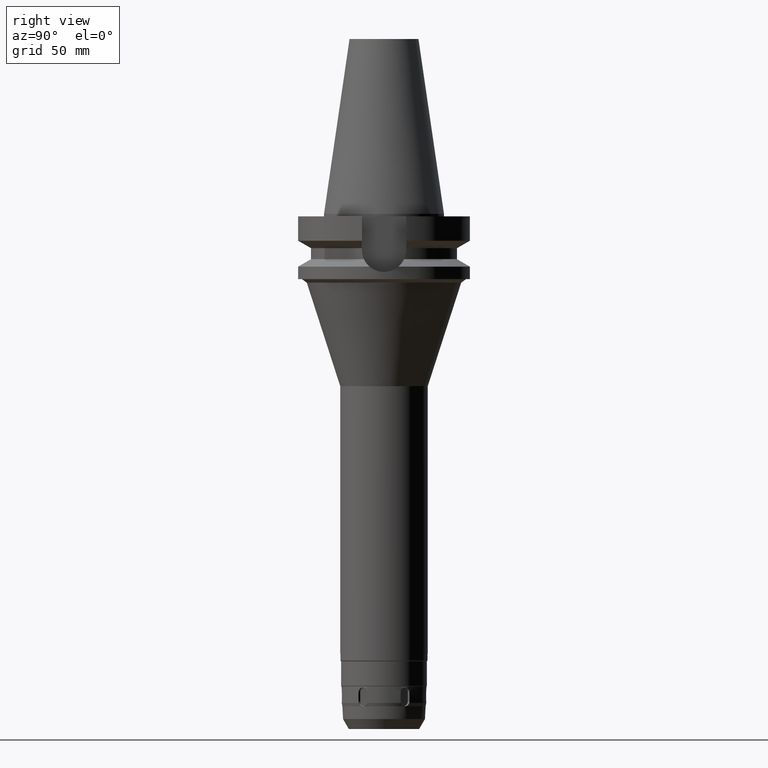
[diagram: clean part render]
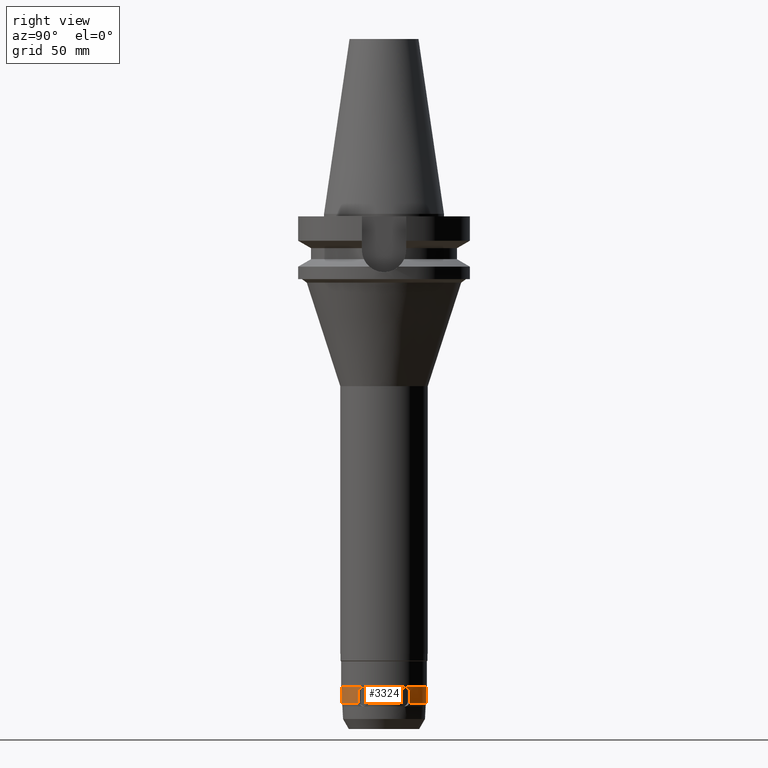
[diagram: same view with one face highlighted and labeled with its STEP entity id]
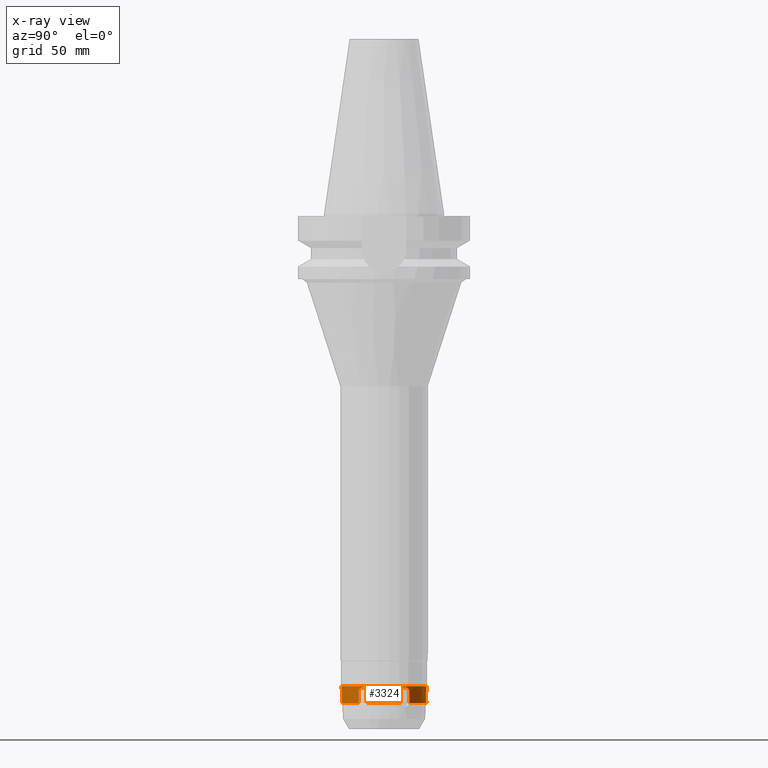
[diagram: x-ray of the same camera — body ghosted, the highlighted face saturated]
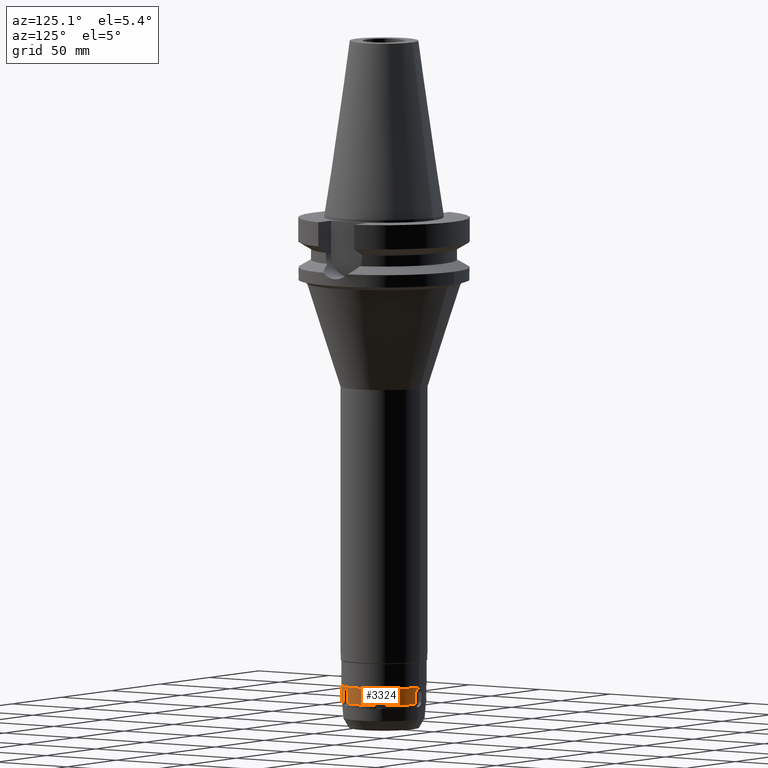
[diagram: same view with one face highlighted and labeled with its STEP entity id]
A machine part, right view. The second image highlights one B-rep face of the part: STEP entity #3324.
The next image is the same camera in x-ray: the body ghosted, the highlighted face saturated — about 0% of this face is hidden behind the body in this view.
A second angle (auxiliary view) of the same face is appended — the face is thin or edge-on in the first view.
In plain terms, the highlighted cylindrical surface (partial cylindrical patch) has radius 24.75 mm, axis along (0, 0, -1).
Its self-contained STEP definition (entity closure, byte-faithful):
#467=CARTESIAN_POINT('',(0.E0,2.475E1,-2.758E2));
#472=DIRECTION('',(0.E0,2.732856676001E-14,-1.E0));
#473=VECTOR('',#472,6.499999999998E-1);
#474=CARTESIAN_POINT('',(0.E0,-2.475E1,-2.7515E2));
#475=LINE('',#474,#473);
#915=DIRECTION('',(-4.985799191714E-7,-1.752553323637E-7,9.999999999999E-1));
#916=VECTOR('',#915,5.000000000457E0);
#917=CARTESIAN_POINT('',(3.000002492900E0,-2.456750815496E1,-2.838000000005E2));
#918=LINE('',#917,#916);
#922=CARTESIAN_POINT('',(3.E0,-2.456750903124E1,-2.788E2));
#923=CARTESIAN_POINT('',(3.E0,-2.456750903124E1,-2.784773189620E2));
#924=CARTESIAN_POINT('',(2.901737406105E0,-2.457983105459E1,-2.778657216087E2));
#925=CARTESIAN_POINT('',(2.468117400806E0,-2.462868960676E1,-2.770076618780E2));
#926=CARTESIAN_POINT('',(1.796126327076E0,-2.468888519152E1,-2.763345541125E2));
#927=CARTESIAN_POINT('',(9.374418590112E-1,-2.473768067492E1,
-2.758990372206E2));
#928=CARTESIAN_POINT('',(3.238370295E-1,-2.475E1,-2.758E2));
#929=CARTESIAN_POINT('',(0.E0,-2.475E1,-2.758E2));
#934=DIRECTION('',(0.E0,2.732856676001E-14,-1.E0));
#935=VECTOR('',#934,6.499999999998E-1);
#936=CARTESIAN_POINT('',(0.E0,2.475E1,-2.7515E2));
#937=LINE('',#936,#935);
#941=CARTESIAN_POINT('',(0.E0,2.475E1,-2.758E2));
#942=CARTESIAN_POINT('',(3.225943565431E-1,2.475E1,-2.758E2));
#943=CARTESIAN_POINT('',(9.343732660262E-1,2.473777639778E1,-2.758982749011E2));
#944=CARTESIAN_POINT('',(1.792350117317E0,2.468916330610E1,-2.763319074940E2));
#945=CARTESIAN_POINT('',(2.465473525384E0,2.462896830111E1,-2.770038877262E2));
#946=CARTESIAN_POINT('',(2.900979531439E0,2.457992707366E1,-2.778626657037E2));
#947=CARTESIAN_POINT('',(3.E0,2.456750903124E1,-2.784760815761E2));
#948=CARTESIAN_POINT('',(3.E0,2.456750903124E1,-2.788E2));
#953=DIRECTION('',(2.576889739610E-7,-7.023126662184E-6,-9.999999999753E-1));
#954=VECTOR('',#953,5.000000012459E0);
#955=CARTESIAN_POINT('',(3.E0,2.456750903124E1,-2.788E2));
#956=LINE('',#955,#954);
#960=CARTESIAN_POINT('',(3.000001288445E0,2.456747391561E1,-2.838000000123E2));
#961=CARTESIAN_POINT('',(3.000001288445E0,2.456747391561E1,-2.839258400291E2));
#962=CARTESIAN_POINT('',(2.984316333592E0,2.456944845330E1,-2.841751526566E2));
#963=CARTESIAN_POINT('',(2.913995611813E0,2.457791047101E1,-2.845455275823E2));
#964=CARTESIAN_POINT('',(2.837149755738E0,2.458689214251E1,-2.847830320613E2));
#965=CARTESIAN_POINT('',(2.791052263792E0,2.459212389518E1,-2.848999973441E2));
#970=CARTESIAN_POINT('',(1.990187100291E1,1.471325292055E1,-2.848998445620E2));
#971=CARTESIAN_POINT('',(1.987430333504E1,1.475054250773E1,-2.847828735393E2));
#972=CARTESIAN_POINT('',(1.982810225289E1,1.481252235116E1,-2.845456004221E2));
#973=CARTESIAN_POINT('',(1.978559961788E1,1.486921101090E1,-2.841751306958E2));
#974=CARTESIAN_POINT('',(1.977608492607E1,1.488183244549E1,-2.839258396634E2));
#975=CARTESIAN_POINT('',(1.977608492607E1,1.488183244549E1,-2.838000000005E2));
#980=DIRECTION('',(4.005382741557E-7,-3.437027707462E-7,9.999999999999E-1));
#981=VECTOR('',#980,5.000000000456E0);
#982=CARTESIAN_POINT('',(1.977608492607E1,1.488183244549E1,-2.838000000005E2));
#983=LINE('',#982,#981);
#987=CARTESIAN_POINT('',(1.977608692876E1,1.488183072697E1,-2.788E2));
#988=CARTESIAN_POINT('',(1.977608692876E1,1.488183072697E1,-2.784773752667E2));
#989=CARTESIAN_POINT('',(1.983586684451E1,1.480292365529E1,-2.778658471675E2));
#990=CARTESIAN_POINT('',(2.009498005915E1,1.445184226122E1,-2.770077150291E2));
#991=CARTESIAN_POINT('',(2.048316652153E1,1.389989513474E1,-2.763345007345E2));
#992=CARTESIAN_POINT('',(2.095481770310E1,1.318056375420E1,-2.758989928907E2));
#993=CARTESIAN_POINT('',(2.127224328425E1,1.265539396954E1,-2.757999993626E2));
#994=CARTESIAN_POINT('',(2.143412879945E1,1.237500003221E1,-2.757999993626E2));
#999=CARTESIAN_POINT('',(2.143412879945E1,1.237500003221E1,-2.757999993626E2));
#1000=CARTESIAN_POINT('',(2.159538681796E1,1.209569295101E1,-2.757999993626E2));
#1001=CARTESIAN_POINT('',(2.189064921239E1,1.155985231454E1,-2.758982062018E2));
#1002=CARTESIAN_POINT('',(2.227765758541E1,1.079228290176E1,-2.763319451164E2));
#1003=CARTESIAN_POINT('',(2.256207875571E1,1.017925374528E1,-2.770039869237E2));
#1004=CARTESIAN_POINT('',(2.273734784923E1,9.777602339054E0,-2.778628080706E2));
#1005=CARTESIAN_POINT('',(2.277608692876E1,9.685678304267E0,-2.784761421239E2));
#1006=CARTESIAN_POINT('',(2.277608692876E1,9.685678304267E0,-2.788E2));
#1011=DIRECTION('',(-5.953448492678E-6,-3.734266386889E-6,-9.999999999753E-1));
#1012=VECTOR('',#1011,5.000000012458E0);
#1013=CARTESIAN_POINT('',(2.277608692876E1,9.685678304267E0,-2.788E2));
#1014=LINE('',#1013,#1012);
#1018=CARTESIAN_POINT('',(2.277605716152E1,9.685659632935E0,-2.838000000123E2));
#1019=CARTESIAN_POINT('',(2.277605716152E1,9.685659632935E0,-2.839258400292E2));
#1020=CARTESIAN_POINT('',(2.276992468094E1,9.700230475901E0,-2.841751526574E2));
#1021=CARTESIAN_POINT('',(2.274209265096E1,9.765360997966E0,-2.845455275850E2));
#1022=CARTESIAN_POINT('',(2.271144807453E1,9.836402304117E0,-2.847830320671E2));
#1023=CARTESIAN_POINT('',(2.269293015968E1,9.878939778698E0,-2.848999973466E2));
#1028=CARTESIAN_POINT('',(2.269298630309E1,-9.878899410784E0,
-2.848998445612E2));
#1029=CARTESIAN_POINT('',(2.271149619891E1,-9.836380316590E0,
-2.847828735384E2));
#1030=CARTESIAN_POINT('',(2.274207177663E1,-9.765379084357E0,
-2.845456004225E2));
#1031=CARTESIAN_POINT('',(2.276991427863E1,-9.700226392716E0,
-2.841751306957E2));
#1032=CARTESIAN_POINT('',(2.277608741569E1,-9.685675710629E0,
-2.839258396634E2));
#1033=CARTESIAN_POINT('',(2.277608741569E1,-9.685675710629E0,
-2.838000000005E2));
#1038=DIRECTION('',(-9.738618017784E-8,-5.187276321787E-7,9.999999999999E-1));
#1039=VECTOR('',#1038,5.000000000456E0);
#1040=CARTESIAN_POINT('',(2.277608741569E1,-9.685675710629E0,
-2.838000000005E2));
#1041=LINE('',#1040,#1039);
#1045=CARTESIAN_POINT('',(2.277608692876E1,-9.685678304267E0,-2.788E2));
#1046=CARTESIAN_POINT('',(2.277608692876E1,-9.685678304267E0,
-2.784773492231E2));
#1047=CARTESIAN_POINT('',(2.273763579786E1,-9.776916607144E0,
-2.778657934553E2));
#1048=CARTESIAN_POINT('',(2.256314203351E1,-1.017686301117E1,
-2.770077103197E2));
#1049=CARTESIAN_POINT('',(2.227929621174E1,-1.078889085747E1,
-2.763345817537E2));
#1050=CARTESIAN_POINT('',(2.189209564939E1,-1.155715623215E1,
-2.758989654914E2));
#1051=CARTESIAN_POINT('',(2.159600657219E1,-1.209461950521E1,
-2.757999993626E2));
#1052=CARTESIAN_POINT('',(2.143412879945E1,-1.237500003221E1,
-2.757999993626E2));
#1057=CARTESIAN_POINT('',(2.143412879945E1,-1.237500003221E1,
-2.757999993626E2));
#1058=CARTESIAN_POINT('',(2.127286984388E1,-1.265430873643E1,
-2.757999993626E2));
#1059=CARTESIAN_POINT('',(2.095644792771E1,-1.317793309358E1,
-2.758982247524E2));
#1060=CARTESIAN_POINT('',(2.048531096178E1,-1.389674128364E1,
-2.763318333027E2));
#1061=CARTESIAN_POINT('',(2.009654832199E1,-1.444968524736E1,
-2.770039273537E2));
#1062=CARTESIAN_POINT('',(1.983633087374E1,-1.480231272656E1,
-2.778627792158E2));
#1063=CARTESIAN_POINT('',(1.977608692876E1,-1.488183072697E1,
-2.784761333597E2));
#1064=CARTESIAN_POINT('',(1.977608692876E1,-1.488183072697E1,-2.788E2));
#1069=DIRECTION('',(-6.210693610754E-6,3.288704327863E-6,-9.999999999753E-1));
#1070=VECTOR('',#1069,5.000000012459E0);
#1071=CARTESIAN_POINT('',(1.977608692876E1,-1.488183072697E1,-2.788E2));
#1072=LINE('',#1071,#1070);
#1076=CARTESIAN_POINT('',(1.977605587529E1,-1.488181428345E1,
-2.838000000123E2));
#1077=CARTESIAN_POINT('',(1.977605587529E1,-1.488181428345E1,
-2.839258400292E2));
#1078=CARTESIAN_POINT('',(1.978560835517E1,-1.486921797800E1,
-2.841751526574E2));
#1079=CARTESIAN_POINT('',(1.982809702682E1,-1.481254947200E1,
-2.845455275849E2));
#1080=CARTESIAN_POINT('',(1.987429831451E1,-1.475048983717E1,
-2.847830320673E2));
#1081=CARTESIAN_POINT('',(1.990187789070E1,-1.471318411516E1,
-2.848999973469E2));
#1086=CARTESIAN_POINT('',(2.791115295476E0,-2.459215233289E1,
-2.848998445561E2));
#1087=CARTESIAN_POINT('',(2.837192859875E0,-2.458692282574E1,
-2.847828735296E2));
#1088=CARTESIAN_POINT('',(2.913969511288E0,-2.457790143645E1,
-2.845456004210E2));
#1089=CARTESIAN_POINT('',(2.984314674456E0,-2.456943740244E1,
-2.841751306947E2));
#1090=CARTESIAN_POINT('',(3.000002492900E0,-2.456750815496E1,
-2.839258396634E2));
#1091=CARTESIAN_POINT('',(3.000002492900E0,-2.456750815496E1,
-2.838000000005E2));
#1149=CARTESIAN_POINT('',(0.E0,-2.143438060208E-14,-2.7515E2));
#1150=DIRECTION('',(0.E0,0.E0,-1.E0));
#1151=DIRECTION('',(0.E0,1.E0,0.E0));
#1152=AXIS2_PLACEMENT_3D('',#1149,#1150,#1151);
#2070=CARTESIAN_POINT('',(1.990187100291E1,1.471325292055E1,-2.848998445620E2));
#2075=CARTESIAN_POINT('',(0.E0,-2.275804337279E-14,-2.849E2));
#2076=DIRECTION('',(0.E0,0.E0,1.E0));
#2077=DIRECTION('',(8.041163631674E-1,5.944719290988E-1,0.E0));
#2078=AXIS2_PLACEMENT_3D('',#2075,#2076,#2077);
#2112=CARTESIAN_POINT('',(2.269298630309E1,-9.878899410784E0,
-2.848998445612E2));
#2117=CARTESIAN_POINT('',(0.E0,-2.275804337279E-14,-2.849E2));
#2118=DIRECTION('',(0.E0,0.E0,1.E0));
#2119=DIRECTION('',(9.168859740200E-1,-3.991492335524E-1,0.E0));
#2120=AXIS2_PLACEMENT_3D('',#2117,#2118,#2119);
#2154=CARTESIAN_POINT('',(2.791115295476E0,-2.459215233289E1,
-2.848998445561E2));
#2159=CARTESIAN_POINT('',(0.E0,-2.275804337279E-14,-2.849E2));
#2160=DIRECTION('',(0.E0,0.E0,1.E0));
#2161=DIRECTION('',(1.127696100176E-1,-9.936211627459E-1,0.E0));
#2162=AXIS2_PLACEMENT_3D('',#2159,#2160,#2161);
#2370=VERTEX_POINT('',#2070);
#2371=CARTESIAN_POINT('',(2.791039356372E0,2.459212474169E1,-2.849E2));
#2372=VERTEX_POINT('',#2371);
#2375=VERTEX_POINT('',#2112);
#2376=CARTESIAN_POINT('',(2.269292444505E1,9.878951367977E0,-2.849E2));
#2377=VERTEX_POINT('',#2376);
#2380=VERTEX_POINT('',#2154);
#2381=CARTESIAN_POINT('',(1.990188506994E1,-1.471317337159E1,-2.849E2));
#2382=VERTEX_POINT('',#2381);
#2391=VERTEX_POINT('',#1018);
#2398=CARTESIAN_POINT('',(1.977608492607E1,1.488183244549E1,-2.838000000005E2));
#2399=VERTEX_POINT('',#2398);
#2408=CARTESIAN_POINT('',(3.000002492900E0,-2.456750815496E1,
-2.838000000005E2));
#2409=VERTEX_POINT('',#2408);
#2417=VERTEX_POINT('',#467);
#2418=CARTESIAN_POINT('',(0.E0,2.475E1,-2.7515E2));
#2419=VERTEX_POINT('',#2418);
#2420=CARTESIAN_POINT('',(0.E0,-2.475E1,-2.7515E2));
#2421=VERTEX_POINT('',#2420);
#2422=CARTESIAN_POINT('',(0.E0,-2.475E1,-2.758E2));
#2423=VERTEX_POINT('',#2422);
#2438=VERTEX_POINT('',#960);
#2445=CARTESIAN_POINT('',(3.E0,-2.456750903124E1,-2.788E2));
#2446=VERTEX_POINT('',#2445);
#2447=VERTEX_POINT('',#948);
#2448=CARTESIAN_POINT('',(1.977608692876E1,1.488183072697E1,-2.788E2));
#2449=VERTEX_POINT('',#2448);
#2450=VERTEX_POINT('',#999);
#2451=VERTEX_POINT('',#1006);
#2452=VERTEX_POINT('',#1033);
#2453=CARTESIAN_POINT('',(2.277608692876E1,-9.685678304267E0,-2.788E2));
#2454=VERTEX_POINT('',#2453);
#2455=VERTEX_POINT('',#1057);
#2456=VERTEX_POINT('',#1064);
#2457=CARTESIAN_POINT('',(1.977605587529E1,-1.488181428345E1,
-2.838000000123E2));
#2458=VERTEX_POINT('',#2457);
#3274=CARTESIAN_POINT('',(0.E0,2.717368782628E-14,1.2189E2));
#3275=DIRECTION('',(0.E0,0.E0,-1.E0));
#3276=DIRECTION('',(0.E0,-1.E0,0.E0));
#3277=AXIS2_PLACEMENT_3D('',#3274,#3275,#3276);
#3278=CYLINDRICAL_SURFACE('',#3277,2.475E1);
#3280=ORIENTED_EDGE('',*,*,#3279,.T.);
#3281=ORIENTED_EDGE('',*,*,#3261,.T.);
#3282=ORIENTED_EDGE('',*,*,#2973,.F.);
#3284=ORIENTED_EDGE('',*,*,#3283,.F.);
#3285=ORIENTED_EDGE('',*,*,#2969,.T.);
#3287=ORIENTED_EDGE('',*,*,#3286,.T.);
#3289=ORIENTED_EDGE('',*,*,#3288,.T.);
#3290=ORIENTED_EDGE('',*,*,#3080,.T.);
#3292=ORIENTED_EDGE('',*,*,#3291,.F.);
#3294=ORIENTED_EDGE('',*,*,#3293,.T.);
#3296=ORIENTED_EDGE('',*,*,#3295,.T.);
#3298=ORIENTED_EDGE('',*,*,#3297,.T.);
#3300=ORIENTED_EDGE('',*,*,#3299,.T.);
#3302=ORIENTED_EDGE('',*,*,#3301,.T.);
#3304=ORIENTED_EDGE('',*,*,#3303,.T.);
#3306=ORIENTED_EDGE('',*,*,#3305,.F.);
#3308=ORIENTED_EDGE('',*,*,#3307,.T.);
#3310=ORIENTED_EDGE('',*,*,#3309,.T.);
#3312=ORIENTED_EDGE('',*,*,#3311,.T.);
#3314=ORIENTED_EDGE('',*,*,#3313,.T.);
#3316=ORIENTED_EDGE('',*,*,#3315,.T.);
#3318=ORIENTED_EDGE('',*,*,#3317,.T.);
#3320=ORIENTED_EDGE('',*,*,#3319,.F.);
#3321=ORIENTED_EDGE('',*,*,#3142,.T.);
#3322=EDGE_LOOP('',(#3280,#3281,#3282,#3284,#3285,#3287,#3289,#3290,#3292,#3294,
#3296,#3298,#3300,#3302,#3304,#3306,#3308,#3310,#3312,#3314,#3316,#3318,#3320,
#3321));
#3323=FACE_OUTER_BOUND('',#3322,.F.);
#930=B_SPLINE_CURVE_WITH_KNOTS('',3,(#922,#923,#924,#925,#926,#927,#928,#929),
.UNSPECIFIED.,.F.,.F.,(4,1,1,1,1,4),(0.E0,2.E-1,4.E-1,6.E-1,8.E-1,1.E0),
.UNSPECIFIED.);
#949=B_SPLINE_CURVE_WITH_KNOTS('',3,(#941,#942,#943,#944,#945,#946,#947,#948),
.UNSPECIFIED.,.F.,.F.,(4,1,1,1,1,4),(0.E0,2.E-1,4.E-1,6.E-1,8.E-1,1.E0),
.UNSPECIFIED.);
#966=B_SPLINE_CURVE_WITH_KNOTS('',3,(#960,#961,#962,#963,#964,#965),
.UNSPECIFIED.,.F.,.F.,(4,1,1,4),(0.E0,3.333333333333E-1,6.666666666667E-1,1.E0),
.UNSPECIFIED.);
#976=B_SPLINE_CURVE_WITH_KNOTS('',3,(#970,#971,#972,#973,#974,#975),
.UNSPECIFIED.,.F.,.F.,(4,1,1,4),(0.E0,3.333333333333E-1,6.666666666667E-1,1.E0),
.UNSPECIFIED.);
#995=B_SPLINE_CURVE_WITH_KNOTS('',3,(#987,#988,#989,#990,#991,#992,#993,#994),
.UNSPECIFIED.,.F.,.F.,(4,1,1,1,1,4),(0.E0,2.E-1,4.E-1,6.E-1,8.E-1,1.E0),
.UNSPECIFIED.);
#1007=B_SPLINE_CURVE_WITH_KNOTS('',3,(#999,#1000,#1001,#1002,#1003,#1004,#1005,
#1006),.UNSPECIFIED.,.F.,.F.,(4,1,1,1,1,4),(0.E0,2.E-1,4.E-1,6.E-1,8.E-1,1.E0),
.UNSPECIFIED.);
#1024=B_SPLINE_CURVE_WITH_KNOTS('',3,(#1018,#1019,#1020,#1021,#1022,#1023),
.UNSPECIFIED.,.F.,.F.,(4,1,1,4),(0.E0,3.333333333333E-1,6.666666666667E-1,1.E0),
.UNSPECIFIED.);
#1034=B_SPLINE_CURVE_WITH_KNOTS('',3,(#1028,#1029,#1030,#1031,#1032,#1033),
.UNSPECIFIED.,.F.,.F.,(4,1,1,4),(0.E0,3.333333333333E-1,6.666666666667E-1,1.E0),
.UNSPECIFIED.);
#1053=B_SPLINE_CURVE_WITH_KNOTS('',3,(#1045,#1046,#1047,#1048,#1049,#1050,#1051,
#1052),.UNSPECIFIED.,.F.,.F.,(4,1,1,1,1,4),(0.E0,2.E-1,4.E-1,6.E-1,8.E-1,1.E0),
.UNSPECIFIED.);
#1065=B_SPLINE_CURVE_WITH_KNOTS('',3,(#1057,#1058,#1059,#1060,#1061,#1062,#1063,
#1064),.UNSPECIFIED.,.F.,.F.,(4,1,1,1,1,4),(0.E0,2.E-1,4.E-1,6.E-1,8.E-1,1.E0),
.UNSPECIFIED.);
#1082=B_SPLINE_CURVE_WITH_KNOTS('',3,(#1076,#1077,#1078,#1079,#1080,#1081),
.UNSPECIFIED.,.F.,.F.,(4,1,1,4),(0.E0,3.333333333333E-1,6.666666666667E-1,1.E0),
.UNSPECIFIED.);
#1092=B_SPLINE_CURVE_WITH_KNOTS('',3,(#1086,#1087,#1088,#1089,#1090,#1091),
.UNSPECIFIED.,.F.,.F.,(4,1,1,4),(0.E0,3.333333333333E-1,6.666666666667E-1,1.E0),
.UNSPECIFIED.);
#1153=CIRCLE('',#1152,2.475E1);
#2079=CIRCLE('',#2078,2.474999999999E1);
#2121=CIRCLE('',#2120,2.474999999999E1);
#2163=CIRCLE('',#2162,2.474999999999E1);
#2969=EDGE_CURVE('',#2419,#2417,#937,.T.);
#2973=EDGE_CURVE('',#2421,#2423,#475,.T.);
#3080=EDGE_CURVE('',#2438,#2372,#966,.T.);
#3142=EDGE_CURVE('',#2380,#2409,#1092,.T.);
#3261=EDGE_CURVE('',#2446,#2423,#930,.T.);
#3279=EDGE_CURVE('',#2409,#2446,#918,.T.);
#3283=EDGE_CURVE('',#2419,#2421,#1153,.T.);
#3286=EDGE_CURVE('',#2417,#2447,#949,.T.);
#3288=EDGE_CURVE('',#2447,#2438,#956,.T.);
#3291=EDGE_CURVE('',#2370,#2372,#2079,.T.);
#3293=EDGE_CURVE('',#2370,#2399,#976,.T.);
#3295=EDGE_CURVE('',#2399,#2449,#983,.T.);
#3297=EDGE_CURVE('',#2449,#2450,#995,.T.);
#3299=EDGE_CURVE('',#2450,#2451,#1007,.T.);
#3301=EDGE_CURVE('',#2451,#2391,#1014,.T.);
#3303=EDGE_CURVE('',#2391,#2377,#1024,.T.);
#3305=EDGE_CURVE('',#2375,#2377,#2121,.T.);
#3307=EDGE_CURVE('',#2375,#2452,#1034,.T.);
#3309=EDGE_CURVE('',#2452,#2454,#1041,.T.);
#3311=EDGE_CURVE('',#2454,#2455,#1053,.T.);
#3313=EDGE_CURVE('',#2455,#2456,#1065,.T.);
#3315=EDGE_CURVE('',#2456,#2458,#1072,.T.);
#3317=EDGE_CURVE('',#2458,#2382,#1082,.T.);
#3319=EDGE_CURVE('',#2380,#2382,#2163,.T.);
#3324=ADVANCED_FACE('',(#3323),#3278,.T.);